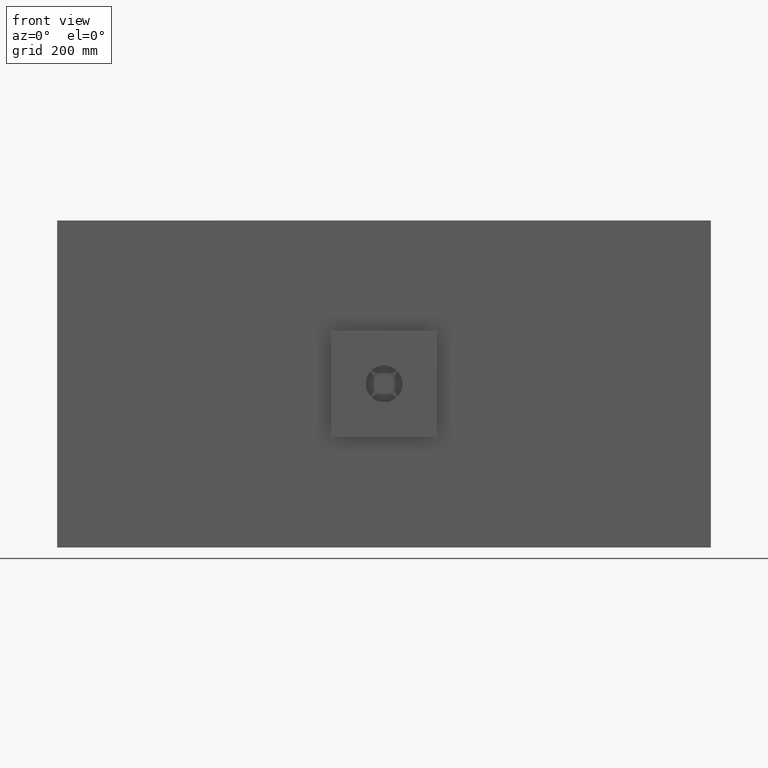
[diagram: clean part render]
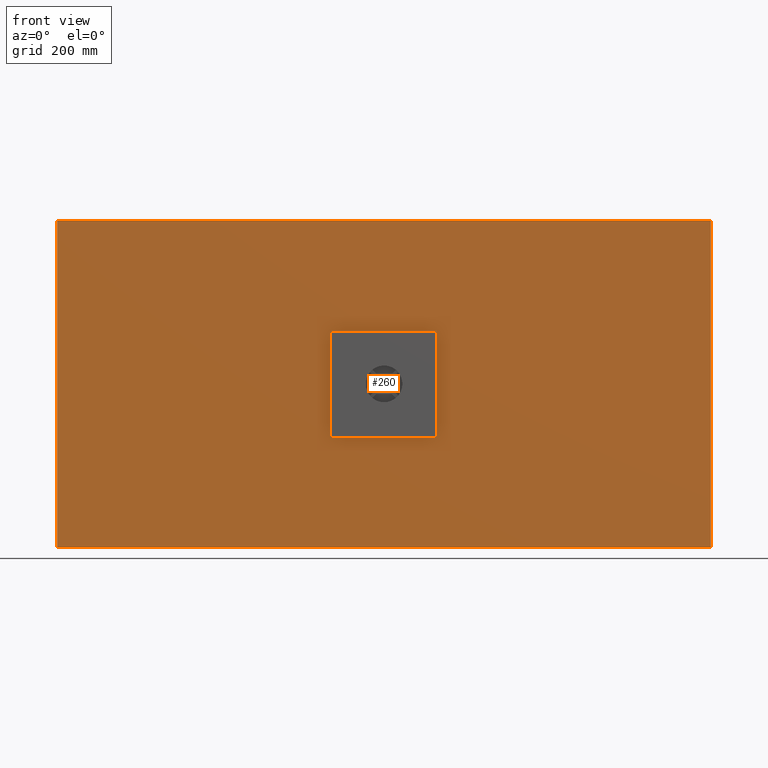
[diagram: same view with one face highlighted and labeled with its STEP entity id]
A machine part, front view. The second image highlights one B-rep face of the part: STEP entity #260.
In plain terms, the highlighted planar face has unit normal (0, 1, 0).
Its self-contained STEP definition (entity closure, byte-faithful):
#22 = VERTEX_POINT ( 'NONE', #1911 ) ;
#25 = ORIENTED_EDGE ( 'NONE', *, *, #1827, .T. ) ;
#50 = VERTEX_POINT ( 'NONE', #1777 ) ;
#52 = DIRECTION ( 'NONE',  ( 0.0000000000000000000, 0.0000000000000000000, 1.000000000000000000 ) ) ;
#82 = CARTESIAN_POINT ( 'NONE',  ( -800.0000000000001100, 0.0000000000000000000, 400.0000000000000600 ) ) ;
#101 = CARTESIAN_POINT ( 'NONE',  ( -77.50000000000018500, 0.0000000000000000000, 80.00000000000011400 ) ) ;
#130 = VECTOR ( 'NONE', #1257, 1000.000000000000000 ) ;
#260 = ADVANCED_FACE ( 'NONE', ( #680, #2302 ), #1446, .F. ) ;
#287 = LINE ( 'NONE', #2741, #600 ) ;
#315 = VERTEX_POINT ( 'NONE', #2856 ) ;
#379 = VERTEX_POINT ( 'NONE', #2577 ) ;
#385 = CARTESIAN_POINT ( 'NONE',  ( -80.00000000000017100, 0.0000000000000000000, -77.49999999999994300 ) ) ;
#505 = VERTEX_POINT ( 'NONE', #2886 ) ;
#583 = VERTEX_POINT ( 'NONE', #825 ) ;
#600 = VECTOR ( 'NONE', #2713, 1000.000000000000000 ) ;
#639 = CARTESIAN_POINT ( 'NONE',  ( -77.50000000000018500, 0.0000000000000000000, 77.50000000000011400 ) ) ;
#673 = CIRCLE ( 'NONE', #1807, 2.500000000000016000 ) ;
#680 = FACE_BOUND ( 'NONE', #2805, .T. ) ;
#723 = CARTESIAN_POINT ( 'NONE',  ( -80.00000000000018500, 0.0000000000000000000, 77.50000000000011400 ) ) ;
#747 = VECTOR ( 'NONE', #1246, 1000.000000000000000 ) ;
#786 = LINE ( 'NONE', #385, #747 ) ;
#825 = CARTESIAN_POINT ( 'NONE',  ( 79.99999999999984400, 0.0000000000000000000, 77.50000000000011400 ) ) ;
#891 = EDGE_CURVE ( 'NONE', #50, #315, #1966, .T. ) ;
#925 = EDGE_CURVE ( 'NONE', #3199, #50, #2095, .T. ) ;
#945 = LINE ( 'NONE', #1050, #130 ) ;
#957 = DIRECTION ( 'NONE',  ( -1.000000000000000000, -0.0000000000000000000, 2.686023446673765400E-016 ) ) ;
#977 = AXIS2_PLACEMENT_3D ( 'NONE', #1806, #1818, #1831 ) ;
#981 = DIRECTION ( 'NONE',  ( 0.0000000000000000000, -0.0000000000000000000, 1.000000000000000000 ) ) ;
#1008 = ORIENTED_EDGE ( 'NONE', *, *, #2898, .F. ) ;
#1012 = VERTEX_POINT ( 'NONE', #723 ) ;
#1036 = VECTOR ( 'NONE', #1979, 1000.000000000000000 ) ;
#1050 = CARTESIAN_POINT ( 'NONE',  ( 79.99999999999981500, 0.0000000000000000000, -77.49999999999997200 ) ) ;
#1207 = EDGE_CURVE ( 'NONE', #2446, #22, #2576, .T. ) ;
#1236 = LINE ( 'NONE', #82, #1036 ) ;
#1246 = DIRECTION ( 'NONE',  ( -1.790682297782509900E-016, 0.0000000000000000000, 1.000000000000000000 ) ) ;
#1257 = DIRECTION ( 'NONE',  ( -1.790682297782509700E-016, -0.0000000000000000000, -1.000000000000000000 ) ) ;
#1280 = EDGE_CURVE ( 'NONE', #1725, #3199, #1292, .T. ) ;
#1292 = CIRCLE ( 'NONE', #977, 2.499999999999988500 ) ;
#1315 = EDGE_CURVE ( 'NONE', #22, #379, #1236, .T. ) ;
#1370 = EDGE_CURVE ( 'NONE', #315, #1012, #786, .T. ) ;
#1380 = AXIS2_PLACEMENT_3D ( 'NONE', #2079, #2704, #1917 ) ;
#1402 = ORIENTED_EDGE ( 'NONE', *, *, #925, .T. ) ;
#1446 = PLANE ( 'NONE',  #2248 ) ;
#1486 = VECTOR ( 'NONE', #957, 1000.000000000000000 ) ;
#1493 = CARTESIAN_POINT ( 'NONE',  ( 77.49999999999984400, 0.0000000000000000000, -79.99999999999997200 ) ) ;
#1509 = ORIENTED_EDGE ( 'NONE', *, *, #1885, .T. ) ;
#1512 = EDGE_CURVE ( 'NONE', #505, #2446, #287, .T. ) ;
#1575 = CARTESIAN_POINT ( 'NONE',  ( -800.0000000000001100, 0.0000000000000000000, -399.9999999999999400 ) ) ;
#1689 = CARTESIAN_POINT ( 'NONE',  ( 77.49999999999984400, 0.0000000000000000000, 80.00000000000009900 ) ) ;
#1725 = VERTEX_POINT ( 'NONE', #1762 ) ;
#1762 = CARTESIAN_POINT ( 'NONE',  ( 79.99999999999987200, 0.0000000000000000000, -77.50000000000001400 ) ) ;
#1777 = CARTESIAN_POINT ( 'NONE',  ( -77.50000000000018500, 0.0000000000000000000, -79.99999999999992900 ) ) ;
#1806 = CARTESIAN_POINT ( 'NONE',  ( 77.49999999999982900, 0.0000000000000000000, -77.49999999999997200 ) ) ;
#1807 = AXIS2_PLACEMENT_3D ( 'NONE', #639, #2513, #3261 ) ;
#1818 = DIRECTION ( 'NONE',  ( 0.0000000000000000000, 1.000000000000000000, -0.0000000000000000000 ) ) ;
#1827 = EDGE_CURVE ( 'NONE', #2058, #583, #2761, .T. ) ;
#1831 = DIRECTION ( 'NONE',  ( 0.0000000000000000000, 0.0000000000000000000, -1.000000000000000000 ) ) ;
#1885 = EDGE_CURVE ( 'NONE', #2993, #2058, #1946, .T. ) ;
#1899 = ORIENTED_EDGE ( 'NONE', *, *, #1370, .T. ) ;
#1911 = CARTESIAN_POINT ( 'NONE',  ( -800.0000000000001100, 0.0000000000000000000, 400.0000000000000600 ) ) ;
#1917 = DIRECTION ( 'NONE',  ( 0.0000000000000000000, 0.0000000000000000000, 1.000000000000000000 ) ) ;
#1946 = LINE ( 'NONE', #101, #2525 ) ;
#1966 = CIRCLE ( 'NONE', #1380, 2.499999999999988500 ) ;
#1979 = DIRECTION ( 'NONE',  ( 1.000000000000000000, 0.0000000000000000000, 0.0000000000000000000 ) ) ;
#1986 = ORIENTED_EDGE ( 'NONE', *, *, #1280, .T. ) ;
#2026 = ORIENTED_EDGE ( 'NONE', *, *, #891, .T. ) ;
#2058 = VERTEX_POINT ( 'NONE', #1689 ) ;
#2079 = CARTESIAN_POINT ( 'NONE',  ( -77.50000000000018500, 0.0000000000000000000, -77.49999999999994300 ) ) ;
#2095 = LINE ( 'NONE', #2791, #1486 ) ;
#2157 = ORIENTED_EDGE ( 'NONE', *, *, #2289, .T. ) ;
#2158 = ORIENTED_EDGE ( 'NONE', *, *, #1315, .F. ) ;
#2161 = CARTESIAN_POINT ( 'NONE',  ( 77.49999999999985800, 0.0000000000000000000, 77.50000000000011400 ) ) ;
#2168 = DIRECTION ( 'NONE',  ( 0.0000000000000000000, 1.000000000000000000, 0.0000000000000000000 ) ) ;
#2180 = CARTESIAN_POINT ( 'NONE',  ( -77.50000000000018500, 0.0000000000000000000, 80.00000000000011400 ) ) ;
#2192 = DIRECTION ( 'NONE',  ( 0.0000000000000000000, 0.0000000000000000000, 1.000000000000000000 ) ) ;
#2229 = DIRECTION ( 'NONE',  ( 0.0000000000000000000, 1.000000000000000000, 0.0000000000000000000 ) ) ;
#2248 = AXIS2_PLACEMENT_3D ( 'NONE', #2553, #2168, #981 ) ;
#2277 = CARTESIAN_POINT ( 'NONE',  ( -800.0000000000001100, 0.0000000000000000000, -399.9999999999999400 ) ) ;
#2289 = EDGE_CURVE ( 'NONE', #1012, #2993, #673, .T. ) ;
#2302 = FACE_OUTER_BOUND ( 'NONE', #2498, .T. ) ;
#2369 = DIRECTION ( 'NONE',  ( 1.000000000000000000, 0.0000000000000000000, -8.953411488912551000E-017 ) ) ;
#2446 = VERTEX_POINT ( 'NONE', #2277 ) ;
#2498 = EDGE_LOOP ( 'NONE', ( #2636, #2865, #1008, #2158 ) ) ;
#2513 = DIRECTION ( 'NONE',  ( 0.0000000000000000000, 1.000000000000000000, 0.0000000000000000000 ) ) ;
#2525 = VECTOR ( 'NONE', #2369, 1000.000000000000000 ) ;
#2552 = EDGE_CURVE ( 'NONE', #583, #1725, #945, .T. ) ;
#2553 = CARTESIAN_POINT ( 'NONE',  ( -800.0000000000001100, 0.0000000000000000000, 400.0000000000000600 ) ) ;
#2576 = LINE ( 'NONE', #1575, #2605 ) ;
#2577 = CARTESIAN_POINT ( 'NONE',  ( 799.9999999999998900, 0.0000000000000000000, 400.0000000000000600 ) ) ;
#2605 = VECTOR ( 'NONE', #52, 1000.000000000000000 ) ;
#2617 = VECTOR ( 'NONE', #2668, 1000.000000000000000 ) ;
#2619 = LINE ( 'NONE', #2747, #2617 ) ;
#2636 = ORIENTED_EDGE ( 'NONE', *, *, #1207, .F. ) ;
#2668 = DIRECTION ( 'NONE',  ( -0.0000000000000000000, -0.0000000000000000000, -1.000000000000000000 ) ) ;
#2704 = DIRECTION ( 'NONE',  ( 0.0000000000000000000, 1.000000000000000000, 0.0000000000000000000 ) ) ;
#2713 = DIRECTION ( 'NONE',  ( -1.000000000000000000, -0.0000000000000000000, -0.0000000000000000000 ) ) ;
#2741 = CARTESIAN_POINT ( 'NONE',  ( -800.0000000000001100, 0.0000000000000000000, -399.9999999999999400 ) ) ;
#2747 = CARTESIAN_POINT ( 'NONE',  ( 799.9999999999998900, 0.0000000000000000000, -399.9999999999999400 ) ) ;
#2761 = CIRCLE ( 'NONE', #3036, 2.499999999999988500 ) ;
#2791 = CARTESIAN_POINT ( 'NONE',  ( -77.50000000000018500, 0.0000000000000000000, -79.99999999999992900 ) ) ;
#2805 = EDGE_LOOP ( 'NONE', ( #1509, #25, #2963, #1986, #1402, #2026, #1899, #2157 ) ) ;
#2856 = CARTESIAN_POINT ( 'NONE',  ( -80.00000000000017100, 0.0000000000000000000, -77.49999999999994300 ) ) ;
#2865 = ORIENTED_EDGE ( 'NONE', *, *, #1512, .F. ) ;
#2886 = CARTESIAN_POINT ( 'NONE',  ( 799.9999999999998900, 0.0000000000000000000, -399.9999999999999400 ) ) ;
#2898 = EDGE_CURVE ( 'NONE', #379, #505, #2619, .T. ) ;
#2963 = ORIENTED_EDGE ( 'NONE', *, *, #2552, .T. ) ;
#2993 = VERTEX_POINT ( 'NONE', #2180 ) ;
#3036 = AXIS2_PLACEMENT_3D ( 'NONE', #2161, #2229, #2192 ) ;
#3199 = VERTEX_POINT ( 'NONE', #1493 ) ;
#3261 = DIRECTION ( 'NONE',  ( 0.0000000000000000000, 0.0000000000000000000, 1.000000000000000000 ) ) ;